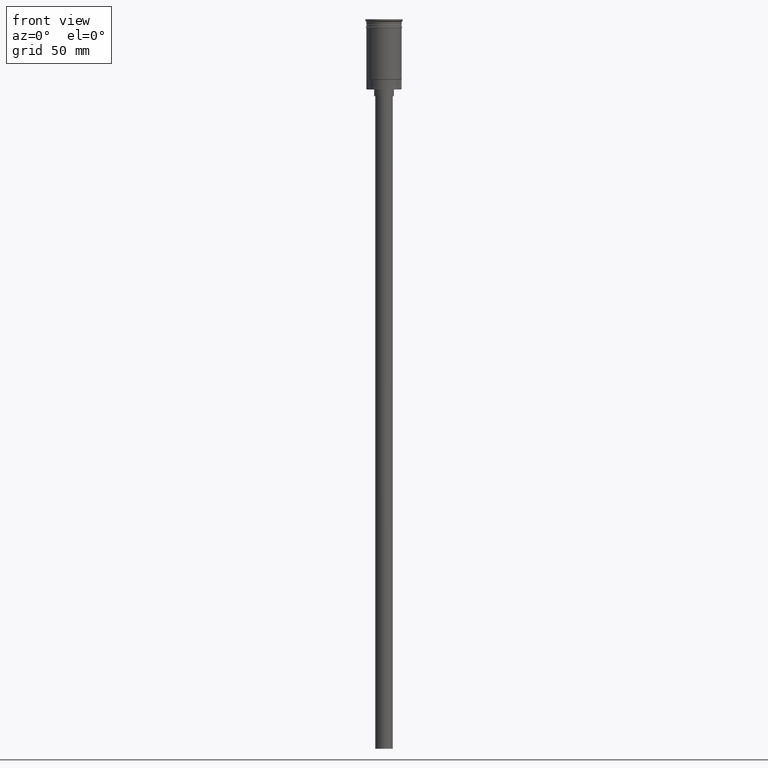
[diagram: clean part render]
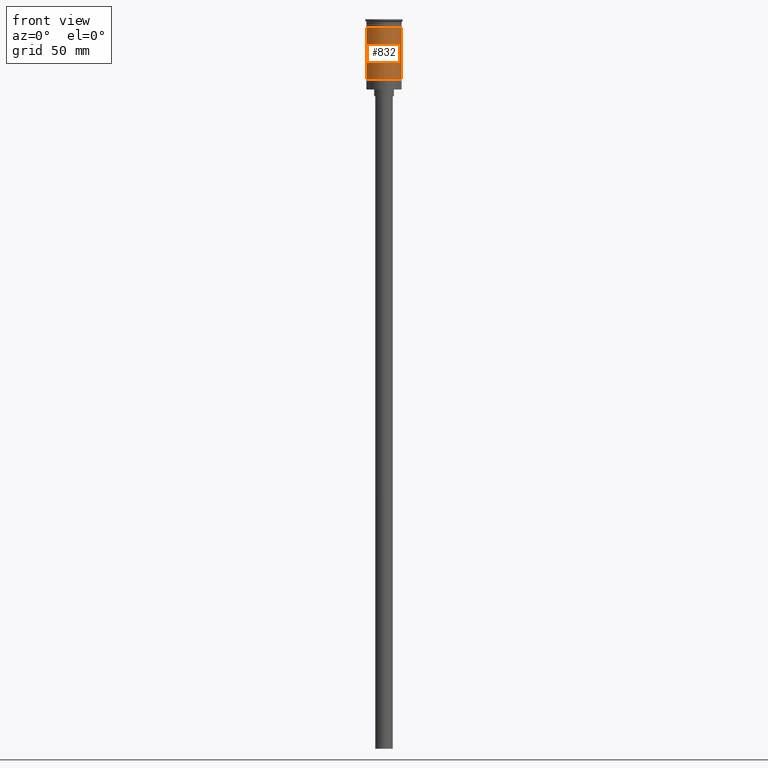
[diagram: same view with one face highlighted and labeled with its STEP entity id]
A machine part, front view. The second image highlights one B-rep face of the part: STEP entity #832.
In plain terms, the highlighted cylindrical surface (edge-blend (fillet) strip) has radius 8 mm, axis along (-0, -0, 1).
Its self-contained STEP definition (entity closure, byte-faithful):
#24 = ORIENTED_EDGE ( 'NONE', *, *, #107, .F. ) ;
#37 = DIRECTION ( 'NONE',  ( -0.000000000000000000, -0.000000000000000000, 1.000000000000000000 ) ) ;
#53 = CARTESIAN_POINT ( 'NONE',  ( 0.000000000000000000, 0.000000000000000000, -27.30000000000006466 ) ) ;
#63 = VECTOR ( 'NONE', #978, 1000.000000000000000 ) ;
#107 = EDGE_CURVE ( 'NONE', #654, #693, #850, .T. ) ;
#227 = CARTESIAN_POINT ( 'NONE',  ( -8.000000000000000000, 9.797174393178825657E-16, -3.999999999999997335 ) ) ;
#269 = DIRECTION ( 'NONE',  ( 1.000000000000000000, 0.000000000000000000, 0.000000000000000000 ) ) ;
#282 = CARTESIAN_POINT ( 'NONE',  ( 0.000000000000000000, 0.000000000000000000, -3.999999999999997335 ) ) ;
#289 = DIRECTION ( 'NONE',  ( 1.000000000000000000, 0.000000000000000000, 0.000000000000000000 ) ) ;
#445 = DIRECTION ( 'NONE',  ( -0.000000000000000000, -0.000000000000000000, 1.000000000000000000 ) ) ;
#568 = CARTESIAN_POINT ( 'NONE',  ( 7.999999999999996447, 0.000000000000000000, 0.000000000000000000 ) ) ;
#573 = DIRECTION ( 'NONE',  ( -0.000000000000000000, -0.000000000000000000, 1.000000000000000000 ) ) ;
#574 = LINE ( 'NONE', #568, #993 ) ;
#628 = VERTEX_POINT ( 'NONE', #845 ) ;
#638 = DIRECTION ( 'NONE',  ( -0.000000000000000000, -0.000000000000000000, 1.000000000000000000 ) ) ;
#640 = CIRCLE ( 'NONE', #835, 7.999999999999996447 ) ;
#654 = VERTEX_POINT ( 'NONE', #1214 ) ;
#693 = VERTEX_POINT ( 'NONE', #227 ) ;
#832 = ADVANCED_FACE ( 'NONE', ( #900 ), #1270, .T. ) ;
#835 = AXIS2_PLACEMENT_3D ( 'NONE', #53, #573, #947 ) ;
#845 = CARTESIAN_POINT ( 'NONE',  ( 8.000000000000000000, 0.000000000000000000, -3.999999999999997335 ) ) ;
#849 = EDGE_CURVE ( 'NONE', #693, #628, #1258, .T. ) ;
#850 = LINE ( 'NONE', #1360, #63 ) ;
#900 = FACE_OUTER_BOUND ( 'NONE', #937, .T. ) ;
#909 = CARTESIAN_POINT ( 'NONE',  ( 7.999999999999996447, 9.797174393178821713E-16, -27.30000000000006466 ) ) ;
#937 = EDGE_LOOP ( 'NONE', ( #24, #1036, #1265, #1391 ) ) ;
#947 = DIRECTION ( 'NONE',  ( -1.000000000000000000, 0.000000000000000000, 0.000000000000000000 ) ) ;
#975 = EDGE_CURVE ( 'NONE', #1603, #628, #574, .T. ) ;
#978 = DIRECTION ( 'NONE',  ( -0.000000000000000000, -0.000000000000000000, 1.000000000000000000 ) ) ;
#993 = VECTOR ( 'NONE', #445, 1000.000000000000000 ) ;
#1036 = ORIENTED_EDGE ( 'NONE', *, *, #1516, .T. ) ;
#1202 = AXIS2_PLACEMENT_3D ( 'NONE', #1248, #638, #289 ) ;
#1214 = CARTESIAN_POINT ( 'NONE',  ( -7.999999999999992895, 0.000000000000000000, -27.30000000000006466 ) ) ;
#1224 = AXIS2_PLACEMENT_3D ( 'NONE', #282, #37, #269 ) ;
#1248 = CARTESIAN_POINT ( 'NONE',  ( 0.000000000000000000, 0.000000000000000000, 0.000000000000000000 ) ) ;
#1258 = CIRCLE ( 'NONE', #1224, 8.000000000000000000 ) ;
#1265 = ORIENTED_EDGE ( 'NONE', *, *, #975, .T. ) ;
#1270 = CYLINDRICAL_SURFACE ( 'NONE', #1202, 7.999999999999996447 ) ;
#1360 = CARTESIAN_POINT ( 'NONE',  ( -7.999999999999996447, 9.797174393178821713E-16, 0.000000000000000000 ) ) ;
#1391 = ORIENTED_EDGE ( 'NONE', *, *, #849, .F. ) ;
#1516 = EDGE_CURVE ( 'NONE', #654, #1603, #640, .T. ) ;
#1603 = VERTEX_POINT ( 'NONE', #909 ) ;